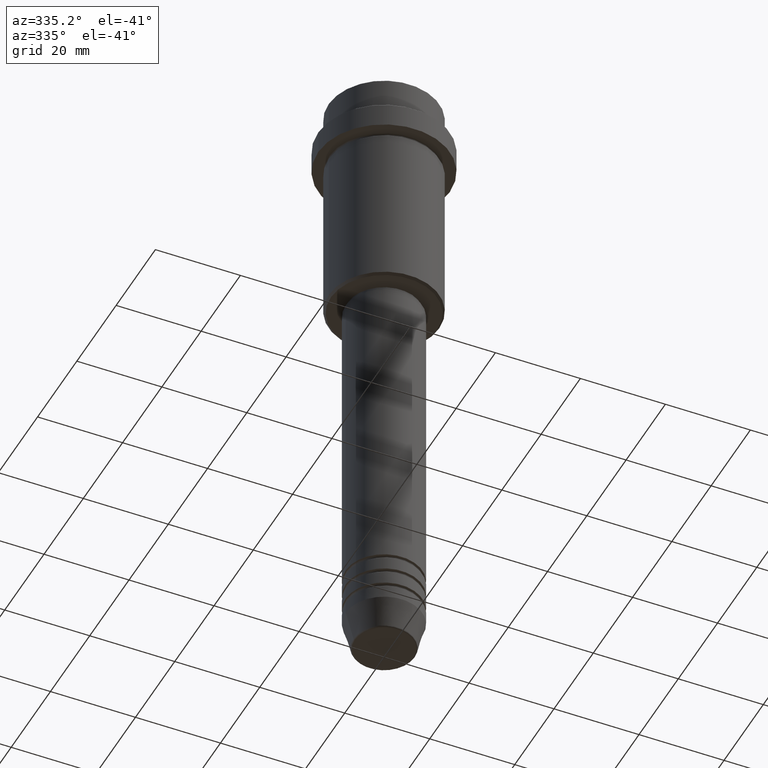
[diagram: clean part render]
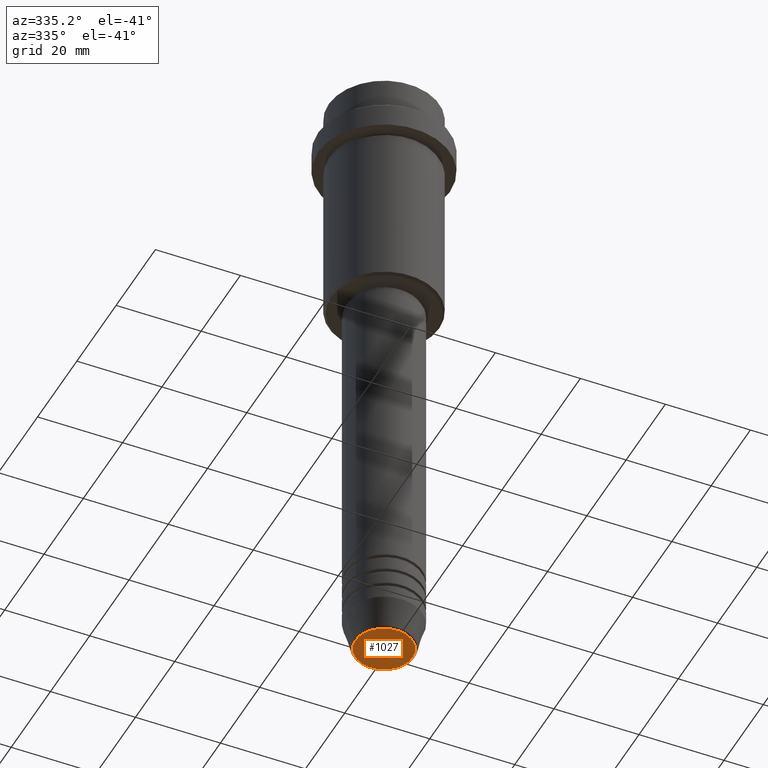
[diagram: same view with one face highlighted and labeled with its STEP entity id]
A machine part, auxiliary view. The second image highlights one B-rep face of the part: STEP entity #1027.
In plain terms, the highlighted planar face has unit normal (0, -0, 1).
Its self-contained STEP definition (entity closure, byte-faithful):
#135 = FACE_OUTER_BOUND ( 'NONE', #378, .T. ) ;
#192 = CARTESIAN_POINT ( 'NONE',  ( 0.000000000000000000, 0.000000000000000000, -149.9999999999999716 ) ) ;
#367 = EDGE_CURVE ( 'NONE', #824, #1144, #626, .T. ) ;
#378 = EDGE_LOOP ( 'NONE', ( #989, #920 ) ) ;
#381 = CARTESIAN_POINT ( 'NONE',  ( 0.000000000000000000, 0.000000000000000000, -149.9999999999999716 ) ) ;
#425 = DIRECTION ( 'NONE',  ( 0.000000000000000000, 0.000000000000000000, -1.000000000000000000 ) ) ;
#445 = CARTESIAN_POINT ( 'NONE',  ( 0.000000000000000000, 0.000000000000000000, -149.9999999999999716 ) ) ;
#455 = DIRECTION ( 'NONE',  ( 0.000000000000000000, 0.000000000000000000, -1.000000000000000000 ) ) ;
#543 = AXIS2_PLACEMENT_3D ( 'NONE', #192, #425, #621 ) ;
#578 = DIRECTION ( 'NONE',  ( 0.000000000000000000, -0.000000000000000000, 1.000000000000000000 ) ) ;
#621 = DIRECTION ( 'NONE',  ( 1.000000000000000000, 0.000000000000000000, 0.000000000000000000 ) ) ;
#626 = CIRCLE ( 'NONE', #647, 6.740692158992659166 ) ;
#647 = AXIS2_PLACEMENT_3D ( 'NONE', #445, #455, #970 ) ;
#701 = AXIS2_PLACEMENT_3D ( 'NONE', #381, #578, #995 ) ;
#715 = CARTESIAN_POINT ( 'NONE',  ( -6.740692158992659166, 8.550696569392690612E-16, -149.9999999999999716 ) ) ;
#745 = CARTESIAN_POINT ( 'NONE',  ( 6.740692158992659166, 0.000000000000000000, -149.9999999999999716 ) ) ;
#772 = EDGE_CURVE ( 'NONE', #1144, #824, #1257, .T. ) ;
#824 = VERTEX_POINT ( 'NONE', #745 ) ;
#906 = PLANE ( 'NONE',  #701 ) ;
#920 = ORIENTED_EDGE ( 'NONE', *, *, #772, .T. ) ;
#970 = DIRECTION ( 'NONE',  ( 1.000000000000000000, 0.000000000000000000, 0.000000000000000000 ) ) ;
#989 = ORIENTED_EDGE ( 'NONE', *, *, #367, .T. ) ;
#995 = DIRECTION ( 'NONE',  ( 1.000000000000000000, 0.000000000000000000, 0.000000000000000000 ) ) ;
#1027 = ADVANCED_FACE ( 'NONE', ( #135 ), #906, .F. ) ;
#1144 = VERTEX_POINT ( 'NONE', #715 ) ;
#1257 = CIRCLE ( 'NONE', #543, 6.740692158992659166 ) ;